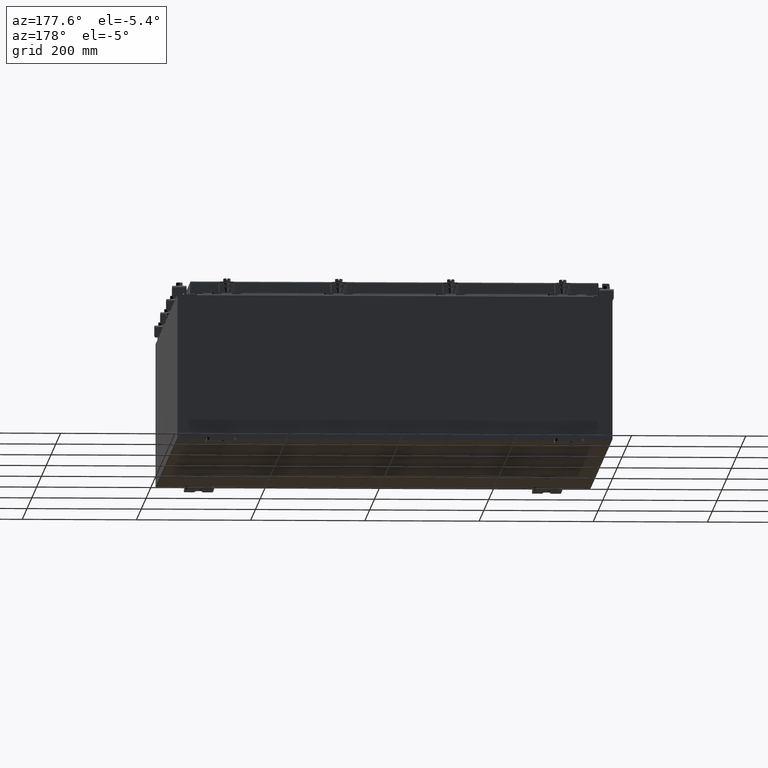
[diagram: clean part render]
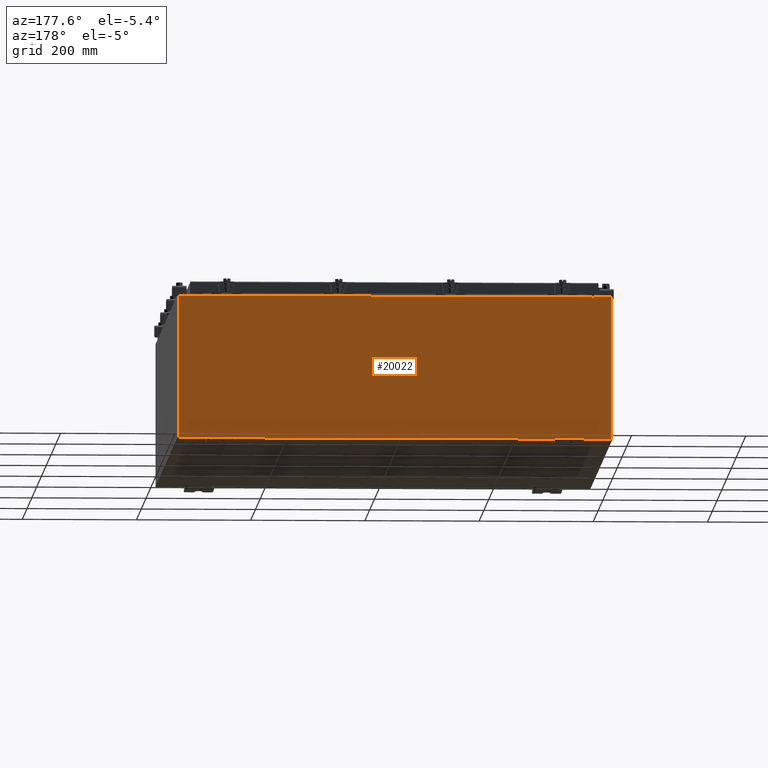
[diagram: same view with one face highlighted and labeled with its STEP entity id]
A machine part, auxiliary view. The second image highlights one B-rep face of the part: STEP entity #20022.
In plain terms, the highlighted planar face has unit normal (0, -1, 0).
Its self-contained STEP definition (entity closure, byte-faithful):
#693 = EDGE_CURVE ( 'NONE', #17946, #23258, #12949, .T. ) ;
#902 = DIRECTION ( 'NONE',  ( 1.000000000000000000, 0.0000000000000000000, 0.0000000000000000000 ) ) ;
#910 = CARTESIAN_POINT ( 'NONE',  ( -13.67455000000000000, 0.0000000000000000000, 4.925300000000000000 ) ) ;
#1177 = ORIENTED_EDGE ( 'NONE', *, *, #1785, .T. ) ;
#1258 = ORIENTED_EDGE ( 'NONE', *, *, #20120, .F. ) ;
#1785 = EDGE_CURVE ( 'NONE', #7846, #19602, #4659, .T. ) ;
#2008 = VECTOR ( 'NONE', #15245, 39.37007874015748100 ) ;
#2077 = EDGE_CURVE ( 'NONE', #7098, #9860, #18518, .T. ) ;
#2232 = LINE ( 'NONE', #22828, #6719 ) ;
#2679 = ORIENTED_EDGE ( 'NONE', *, *, #14116, .F. ) ;
#2922 = CARTESIAN_POINT ( 'NONE',  ( 14.92529999999999800, 0.0000000000000000000, 4.925300000000000000 ) ) ;
#3497 = VECTOR ( 'NONE', #12357, 39.37007874015748100 ) ;
#3508 = DIRECTION ( 'NONE',  ( 0.0000000000000000000, 0.0000000000000000000, 1.000000000000000000 ) ) ;
#3656 = ORIENTED_EDGE ( 'NONE', *, *, #693, .T. ) ;
#4237 = DIRECTION ( 'NONE',  ( 0.0000000000000000000, -1.000000000000000000, 0.0000000000000000000 ) ) ;
#4659 = LINE ( 'NONE', #15219, #17906 ) ;
#4847 = ORIENTED_EDGE ( 'NONE', *, *, #8956, .T. ) ;
#4941 = CIRCLE ( 'NONE', #22927, 0.01867499999999949400 ) ;
#5160 = CARTESIAN_POINT ( 'NONE',  ( -14.92530000000000200, 0.0000000000000000000, -4.925300000000000000 ) ) ;
#5213 = VECTOR ( 'NONE', #24256, 39.37007874015748100 ) ;
#5365 = CARTESIAN_POINT ( 'NONE',  ( -14.92530000000000200, 0.0000000000000000000, 4.925300000000000000 ) ) ;
#5782 = DIRECTION ( 'NONE',  ( -1.000000000000000000, -0.0000000000000000000, -0.0000000000000000000 ) ) ;
#6245 = EDGE_LOOP ( 'NONE', ( #11045, #13205, #10263, #22603, #2679, #1258, #22666, #3656, #23265, #1177, #12752, #4847 ) ) ;
#6497 = LINE ( 'NONE', #11489, #2008 ) ;
#6698 = CARTESIAN_POINT ( 'NONE',  ( -13.63720000000000000, -0.0000000000000000000, 0.0000000000000000000 ) ) ;
#6719 = VECTOR ( 'NONE', #9646, 39.37007874015748100 ) ;
#6815 = LINE ( 'NONE', #24445, #8207 ) ;
#7098 = VERTEX_POINT ( 'NONE', #8292 ) ;
#7616 = VECTOR ( 'NONE', #3508, 39.37007874015748100 ) ;
#7762 = CARTESIAN_POINT ( 'NONE',  ( -13.67455000000000000, -0.0000000000000000000, 0.0000000000000000000 ) ) ;
#7846 = VERTEX_POINT ( 'NONE', #16521 ) ;
#7979 = VECTOR ( 'NONE', #902, 39.37007874015748100 ) ;
#8207 = VECTOR ( 'NONE', #13175, 39.37007874015748100 ) ;
#8292 = CARTESIAN_POINT ( 'NONE',  ( -13.63720000000000000, -7.171100983368691200E-016, 4.912300000000000100 ) ) ;
#8314 = DIRECTION ( 'NONE',  ( -0.0000000000000000000, 1.000000000000000000, -0.0000000000000000000 ) ) ;
#8317 = VERTEX_POINT ( 'NONE', #15774 ) ;
#8956 = EDGE_CURVE ( 'NONE', #24106, #13818, #6497, .T. ) ;
#8967 = EDGE_CURVE ( 'NONE', #17946, #8317, #10314, .T. ) ;
#9646 = DIRECTION ( 'NONE',  ( 1.000000000000000000, 0.0000000000000000000, 0.0000000000000000000 ) ) ;
#9765 = CARTESIAN_POINT ( 'NONE',  ( 13.67454999999978500, -0.0000000000000000000, -5.935537951421795000E-013 ) ) ;
#9860 = VERTEX_POINT ( 'NONE', #17941 ) ;
#9951 = EDGE_CURVE ( 'NONE', #14384, #13818, #12605, .T. ) ;
#10263 = ORIENTED_EDGE ( 'NONE', *, *, #2077, .F. ) ;
#10314 = LINE ( 'NONE', #9765, #15286 ) ;
#11045 = ORIENTED_EDGE ( 'NONE', *, *, #9951, .F. ) ;
#11108 = CARTESIAN_POINT ( 'NONE',  ( -13.65587500000000000, 0.0000000000000000000, 4.874950000000000100 ) ) ;
#11489 = CARTESIAN_POINT ( 'NONE',  ( -14.92530000000000200, 0.0000000000000000000, 4.925300000000000000 ) ) ;
#11739 = CARTESIAN_POINT ( 'NONE',  ( 0.0000000000000000000, 0.0000000000000000000, 0.0000000000000000000 ) ) ;
#12357 = DIRECTION ( 'NONE',  ( 0.0000000000000000000, 0.0000000000000000000, -1.000000000000000000 ) ) ;
#12605 = LINE ( 'NONE', #7762, #7616 ) ;
#12694 = CARTESIAN_POINT ( 'NONE',  ( -14.92530000000000200, 0.0000000000000000000, 4.925300000000000000 ) ) ;
#12752 = ORIENTED_EDGE ( 'NONE', *, *, #18991, .T. ) ;
#12949 = LINE ( 'NONE', #19704, #7979 ) ;
#13002 = DIRECTION ( 'NONE',  ( 0.0000000000000000000, 0.0000000000000000000, -1.000000000000000000 ) ) ;
#13175 = DIRECTION ( 'NONE',  ( 0.0000000000000000000, 0.0000000000000000000, 1.000000000000000000 ) ) ;
#13205 = ORIENTED_EDGE ( 'NONE', *, *, #20972, .F. ) ;
#13740 = AXIS2_PLACEMENT_3D ( 'NONE', #11739, #4237, #17399 ) ;
#13764 = VECTOR ( 'NONE', #23244, 39.37007874015748100 ) ;
#13818 = VERTEX_POINT ( 'NONE', #910 ) ;
#13839 = CARTESIAN_POINT ( 'NONE',  ( 14.92529999999999800, 0.0000000000000000000, 4.925300000000000000 ) ) ;
#14116 = EDGE_CURVE ( 'NONE', #18562, #15125, #6815, .T. ) ;
#14247 = EDGE_CURVE ( 'NONE', #7098, #15125, #2232, .T. ) ;
#14329 = LINE ( 'NONE', #13839, #13764 ) ;
#14384 = VERTEX_POINT ( 'NONE', #19338 ) ;
#14427 = EDGE_CURVE ( 'NONE', #23258, #7846, #14329, .T. ) ;
#15125 = VERTEX_POINT ( 'NONE', #15200 ) ;
#15200 = CARTESIAN_POINT ( 'NONE',  ( 13.63719999999999800, 0.0000000000000000000, 4.912300000000000100 ) ) ;
#15219 = CARTESIAN_POINT ( 'NONE',  ( -14.92530000000000200, 0.0000000000000000000, -4.925300000000000000 ) ) ;
#15245 = DIRECTION ( 'NONE',  ( 1.000000000000000000, 0.0000000000000000000, 0.0000000000000000000 ) ) ;
#15286 = VECTOR ( 'NONE', #19121, 39.37007874015748100 ) ;
#15511 = PLANE ( 'NONE',  #13740 ) ;
#15535 = FACE_OUTER_BOUND ( 'NONE', #6245, .T. ) ;
#15774 = CARTESIAN_POINT ( 'NONE',  ( 13.67454999999999800, 0.0000000000000000000, 4.874950000000000100 ) ) ;
#16521 = CARTESIAN_POINT ( 'NONE',  ( 14.92529999999999800, 0.0000000000000000000, -4.925300000000000000 ) ) ;
#16912 = CARTESIAN_POINT ( 'NONE',  ( 13.67455000000000000, 0.0000000000000000000, 4.925300000000000000 ) ) ;
#17399 = DIRECTION ( 'NONE',  ( 0.0000000000000000000, -0.0000000000000000000, -1.000000000000000000 ) ) ;
#17906 = VECTOR ( 'NONE', #5782, 39.37007874015748100 ) ;
#17941 = CARTESIAN_POINT ( 'NONE',  ( -13.63720000000000000, -0.0000000000000000000, 4.874950000000000100 ) ) ;
#17946 = VERTEX_POINT ( 'NONE', #16912 ) ;
#18518 = LINE ( 'NONE', #6698, #3497 ) ;
#18562 = VERTEX_POINT ( 'NONE', #24346 ) ;
#18836 = AXIS2_PLACEMENT_3D ( 'NONE', #11108, #24317, #13002 ) ;
#18991 = EDGE_CURVE ( 'NONE', #19602, #24106, #21432, .T. ) ;
#19121 = DIRECTION ( 'NONE',  ( -4.340572780400004900E-014, 0.0000000000000000000, -1.000000000000000000 ) ) ;
#19338 = CARTESIAN_POINT ( 'NONE',  ( -13.67455000000000000, 0.0000000000000000000, 4.874950000000000100 ) ) ;
#19558 = CARTESIAN_POINT ( 'NONE',  ( 13.65587499999999800, 0.0000000000000000000, 4.874950000000000100 ) ) ;
#19602 = VERTEX_POINT ( 'NONE', #5160 ) ;
#19704 = CARTESIAN_POINT ( 'NONE',  ( -14.92530000000000200, 0.0000000000000000000, 4.925300000000000000 ) ) ;
#20022 = ADVANCED_FACE ( 'NONE', ( #15535 ), #15511, .F. ) ;
#20120 = EDGE_CURVE ( 'NONE', #8317, #18562, #4941, .T. ) ;
#20224 = CIRCLE ( 'NONE', #18836, 0.01867499999999949400 ) ;
#20972 = EDGE_CURVE ( 'NONE', #9860, #14384, #20224, .T. ) ;
#21432 = LINE ( 'NONE', #5365, #5213 ) ;
#21457 = DIRECTION ( 'NONE',  ( 0.0000000000000000000, 0.0000000000000000000, -1.000000000000000000 ) ) ;
#22603 = ORIENTED_EDGE ( 'NONE', *, *, #14247, .T. ) ;
#22666 = ORIENTED_EDGE ( 'NONE', *, *, #8967, .F. ) ;
#22828 = CARTESIAN_POINT ( 'NONE',  ( -13.63720000000000400, -7.171100983368691200E-016, 4.912300000000000100 ) ) ;
#22927 = AXIS2_PLACEMENT_3D ( 'NONE', #19558, #8314, #21457 ) ;
#23244 = DIRECTION ( 'NONE',  ( 0.0000000000000000000, 0.0000000000000000000, -1.000000000000000000 ) ) ;
#23258 = VERTEX_POINT ( 'NONE', #2922 ) ;
#23265 = ORIENTED_EDGE ( 'NONE', *, *, #14427, .T. ) ;
#24106 = VERTEX_POINT ( 'NONE', #12694 ) ;
#24256 = DIRECTION ( 'NONE',  ( -0.0000000000000000000, -0.0000000000000000000, 1.000000000000000000 ) ) ;
#24317 = DIRECTION ( 'NONE',  ( -0.0000000000000000000, 1.000000000000000000, -0.0000000000000000000 ) ) ;
#24346 = CARTESIAN_POINT ( 'NONE',  ( 13.63719999999999800, 0.0000000000000000000, 4.874950000000000100 ) ) ;
#24445 = CARTESIAN_POINT ( 'NONE',  ( 13.63719999999999800, 0.0000000000000000000, 0.0000000000000000000 ) ) ;